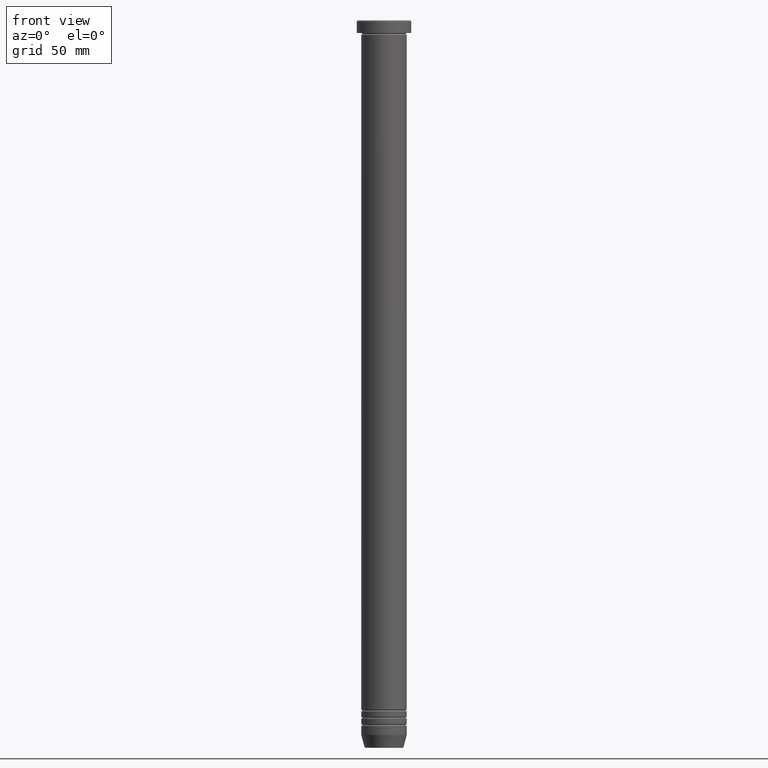
[diagram: clean part render]
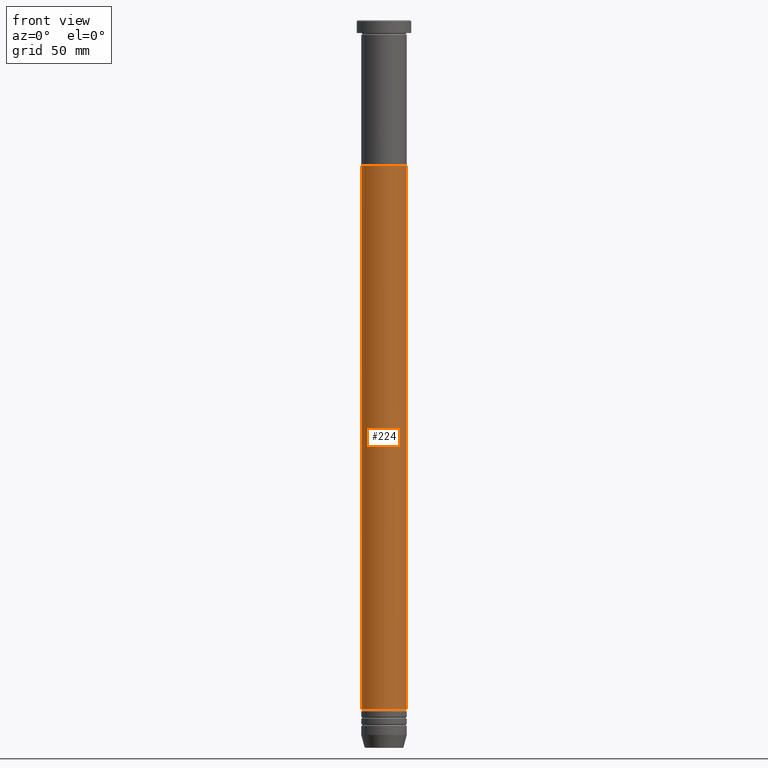
[diagram: same view with one face highlighted and labeled with its STEP entity id]
A machine part, front view. The second image highlights one B-rep face of the part: STEP entity #224.
In plain terms, the highlighted cylindrical surface (edge-blend (fillet) strip) has radius 12.5 mm, axis along (-0, -0, 1).
Its self-contained STEP definition (entity closure, byte-faithful):
#92 = CARTESIAN_POINT ( 'NONE',  ( 12.49999999999999289, 0.000000000000000000, -379.0000000000000000 ) ) ;
#99 = AXIS2_PLACEMENT_3D ( 'NONE', #849, #119, #854 ) ;
#103 = VERTEX_POINT ( 'NONE', #166 ) ;
#111 = DIRECTION ( 'NONE',  ( -0.000000000000000000, -0.000000000000000000, 1.000000000000000000 ) ) ;
#119 = DIRECTION ( 'NONE',  ( -0.000000000000000000, -0.000000000000000000, 1.000000000000000000 ) ) ;
#163 = AXIS2_PLACEMENT_3D ( 'NONE', #347, #899, #667 ) ;
#166 = CARTESIAN_POINT ( 'NONE',  ( -12.50000000000000000, 1.530808498934191521E-15, -80.00000000000000000 ) ) ;
#203 = ORIENTED_EDGE ( 'NONE', *, *, #378, .F. ) ;
#224 = ADVANCED_FACE ( 'NONE', ( #385 ), #533, .T. ) ;
#274 = EDGE_CURVE ( 'NONE', #389, #103, #369, .T. ) ;
#297 = EDGE_LOOP ( 'NONE', ( #909, #900, #977, #203 ) ) ;
#307 = AXIS2_PLACEMENT_3D ( 'NONE', #865, #783, #457 ) ;
#335 = CARTESIAN_POINT ( 'NONE',  ( 12.49999999999999645, 0.000000000000000000, 0.000000000000000000 ) ) ;
#347 = CARTESIAN_POINT ( 'NONE',  ( 0.000000000000000000, 0.000000000000000000, -80.00000000000000000 ) ) ;
#369 = LINE ( 'NONE', #688, #686 ) ;
#370 = CIRCLE ( 'NONE', #163, 12.50000000000000000 ) ;
#378 = EDGE_CURVE ( 'NONE', #103, #1047, #370, .T. ) ;
#385 = FACE_OUTER_BOUND ( 'NONE', #297, .T. ) ;
#389 = VERTEX_POINT ( 'NONE', #645 ) ;
#412 = EDGE_CURVE ( 'NONE', #816, #1047, #418, .T. ) ;
#418 = LINE ( 'NONE', #335, #742 ) ;
#438 = CIRCLE ( 'NONE', #99, 12.49999999999999289 ) ;
#457 = DIRECTION ( 'NONE',  ( 1.000000000000000000, 0.000000000000000000, 0.000000000000000000 ) ) ;
#533 = CYLINDRICAL_SURFACE ( 'NONE', #307, 12.49999999999999645 ) ;
#549 = EDGE_CURVE ( 'NONE', #389, #816, #438, .T. ) ;
#587 = DIRECTION ( 'NONE',  ( -0.000000000000000000, -0.000000000000000000, 1.000000000000000000 ) ) ;
#645 = CARTESIAN_POINT ( 'NONE',  ( -12.49999999999999289, 1.530808498934190930E-15, -379.0000000000000000 ) ) ;
#667 = DIRECTION ( 'NONE',  ( 1.000000000000000000, 0.000000000000000000, 0.000000000000000000 ) ) ;
#686 = VECTOR ( 'NONE', #587, 1000.000000000000000 ) ;
#688 = CARTESIAN_POINT ( 'NONE',  ( -12.49999999999999645, 1.530808498934191127E-15, 0.000000000000000000 ) ) ;
#698 = CARTESIAN_POINT ( 'NONE',  ( 12.50000000000000000, 0.000000000000000000, -80.00000000000000000 ) ) ;
#742 = VECTOR ( 'NONE', #111, 1000.000000000000000 ) ;
#783 = DIRECTION ( 'NONE',  ( -0.000000000000000000, -0.000000000000000000, 1.000000000000000000 ) ) ;
#816 = VERTEX_POINT ( 'NONE', #92 ) ;
#849 = CARTESIAN_POINT ( 'NONE',  ( 0.000000000000000000, 0.000000000000000000, -379.0000000000000000 ) ) ;
#854 = DIRECTION ( 'NONE',  ( 1.000000000000000000, 0.000000000000000000, 0.000000000000000000 ) ) ;
#865 = CARTESIAN_POINT ( 'NONE',  ( 0.000000000000000000, 0.000000000000000000, 0.000000000000000000 ) ) ;
#899 = DIRECTION ( 'NONE',  ( -0.000000000000000000, -0.000000000000000000, 1.000000000000000000 ) ) ;
#900 = ORIENTED_EDGE ( 'NONE', *, *, #549, .T. ) ;
#909 = ORIENTED_EDGE ( 'NONE', *, *, #274, .F. ) ;
#977 = ORIENTED_EDGE ( 'NONE', *, *, #412, .T. ) ;
#1047 = VERTEX_POINT ( 'NONE', #698 ) ;